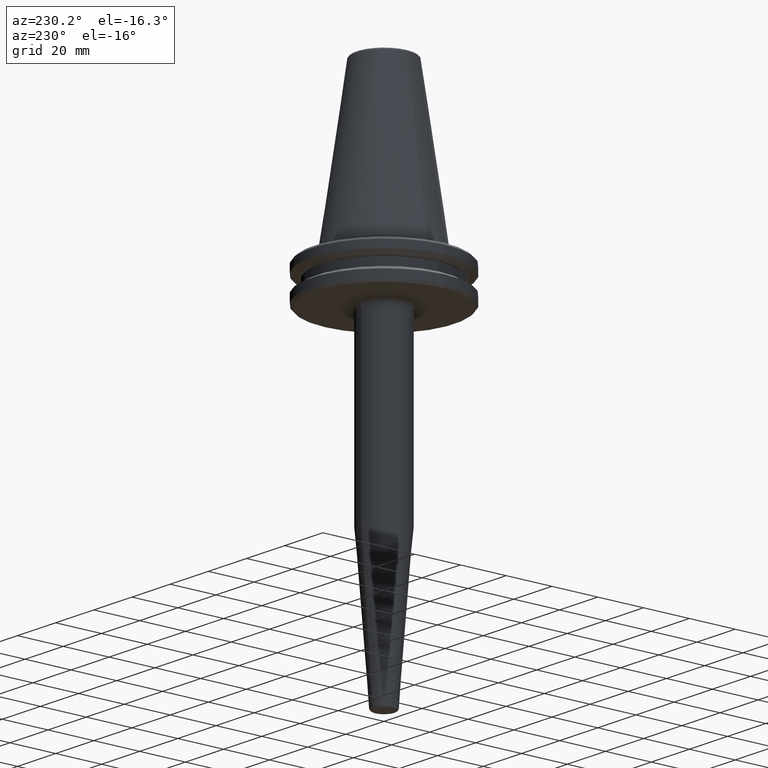
[diagram: clean part render]
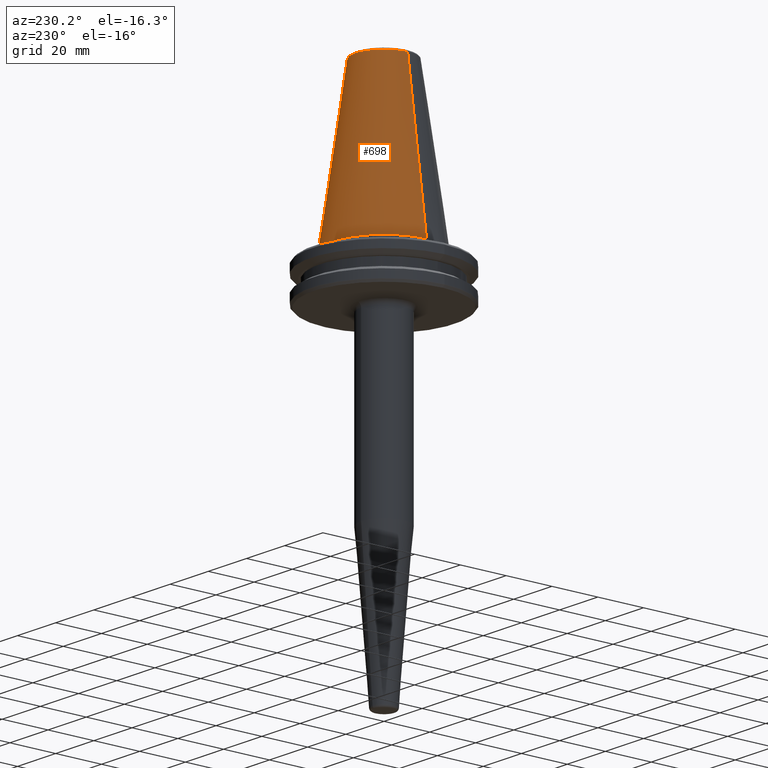
[diagram: same view with one face highlighted and labeled with its STEP entity id]
A machine part, auxiliary view. The second image highlights one B-rep face of the part: STEP entity #698.
In plain terms, the highlighted conical surface has half-angle 8.297 deg.
Its self-contained STEP definition (entity closure, byte-faithful):
#3 = DIRECTION ( 'NONE',  ( 1.000000000000000000, 0.0000000000000000000, 0.0000000000000000000 ) ) ;
#73 = VECTOR ( 'NONE', #635, 1000.000000000000000 ) ;
#85 = DIRECTION ( 'NONE',  ( -1.000000000000000000, 0.0000000000000000000, 0.0000000000000000000 ) ) ;
#87 = CARTESIAN_POINT ( 'NONE',  ( 12.37469537611110800, 1.515463108277802100E-015, 67.54430822726729400 ) ) ;
#111 = EDGE_CURVE ( 'NONE', #705, #1227, #618, .T. ) ;
#139 = FACE_OUTER_BOUND ( 'NONE', #1010, .T. ) ;
#220 = CARTESIAN_POINT ( 'NONE',  ( 22.22500000000000500, 0.0000000000000000000, 0.0000000000000000000 ) ) ;
#229 = VERTEX_POINT ( 'NONE', #220 ) ;
#283 = CARTESIAN_POINT ( 'NONE',  ( 0.0000000000000000000, 0.0000000000000000000, 67.54430822726729400 ) ) ;
#321 = EDGE_CURVE ( 'NONE', #921, #229, #1059, .T. ) ;
#348 = EDGE_CURVE ( 'NONE', #229, #1227, #553, .T. ) ;
#442 = CARTESIAN_POINT ( 'NONE',  ( 0.0000000000000000000, 0.0000000000000000000, 0.0000000000000000000 ) ) ;
#477 = EDGE_CURVE ( 'NONE', #921, #705, #1239, .T. ) ;
#478 = CARTESIAN_POINT ( 'NONE',  ( -12.37469537611110800, 0.0000000000000000000, 67.54430822726729400 ) ) ;
#492 = DIRECTION ( 'NONE',  ( -0.0000000000000000000, -0.0000000000000000000, 1.000000000000000000 ) ) ;
#528 = CARTESIAN_POINT ( 'NONE',  ( -22.22500000000000500, 2.721777511104993200E-015, 0.0000000000000000000 ) ) ;
#553 = CIRCLE ( 'NONE', #929, 22.22500000000000500 ) ;
#579 = CONICAL_SURFACE ( 'NONE', #1116, 12.37469537611110800, 0.1448138465474191100 ) ;
#611 = ORIENTED_EDGE ( 'NONE', *, *, #111, .F. ) ;
#618 = LINE ( 'NONE', #817, #73 ) ;
#635 = DIRECTION ( 'NONE',  ( -0.1443082272673071000, 0.0000000000000000000, -0.9895327864921743500 ) ) ;
#683 = CARTESIAN_POINT ( 'NONE',  ( 0.0000000000000000000, 0.0000000000000000000, 67.54430822726729400 ) ) ;
#698 = ADVANCED_FACE ( 'NONE', ( #139 ), #579, .T. ) ;
#704 = AXIS2_PLACEMENT_3D ( 'NONE', #683, #492, #3 ) ;
#705 = VERTEX_POINT ( 'NONE', #478 ) ;
#803 = ORIENTED_EDGE ( 'NONE', *, *, #477, .F. ) ;
#813 = VECTOR ( 'NONE', #959, 1000.000000000000000 ) ;
#817 = CARTESIAN_POINT ( 'NONE',  ( -12.37469537611110800, 0.0000000000000000000, 67.54430822726729400 ) ) ;
#853 = DIRECTION ( 'NONE',  ( 0.0000000000000000000, 0.0000000000000000000, -1.000000000000000000 ) ) ;
#921 = VERTEX_POINT ( 'NONE', #934 ) ;
#929 = AXIS2_PLACEMENT_3D ( 'NONE', #442, #1009, #1216 ) ;
#934 = CARTESIAN_POINT ( 'NONE',  ( 12.37469537611110800, 2.118620309691397700E-015, 67.54430822726729400 ) ) ;
#959 = DIRECTION ( 'NONE',  ( 0.1443082272673071000, 1.767266086135364600E-017, -0.9895327864921743500 ) ) ;
#1009 = DIRECTION ( 'NONE',  ( -0.0000000000000000000, -0.0000000000000000000, 1.000000000000000000 ) ) ;
#1010 = EDGE_LOOP ( 'NONE', ( #803, #1252, #1072, #611 ) ) ;
#1059 = LINE ( 'NONE', #87, #813 ) ;
#1072 = ORIENTED_EDGE ( 'NONE', *, *, #348, .T. ) ;
#1116 = AXIS2_PLACEMENT_3D ( 'NONE', #283, #853, #85 ) ;
#1216 = DIRECTION ( 'NONE',  ( 1.000000000000000000, 0.0000000000000000000, 0.0000000000000000000 ) ) ;
#1227 = VERTEX_POINT ( 'NONE', #528 ) ;
#1239 = CIRCLE ( 'NONE', #704, 12.37469537611110800 ) ;
#1252 = ORIENTED_EDGE ( 'NONE', *, *, #321, .T. ) ;